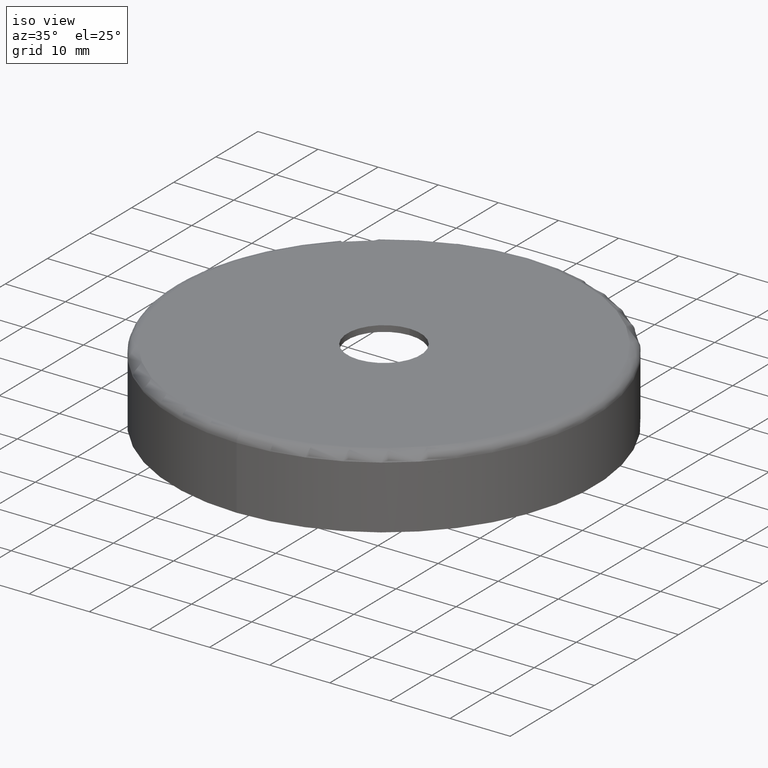
[diagram: clean part render]
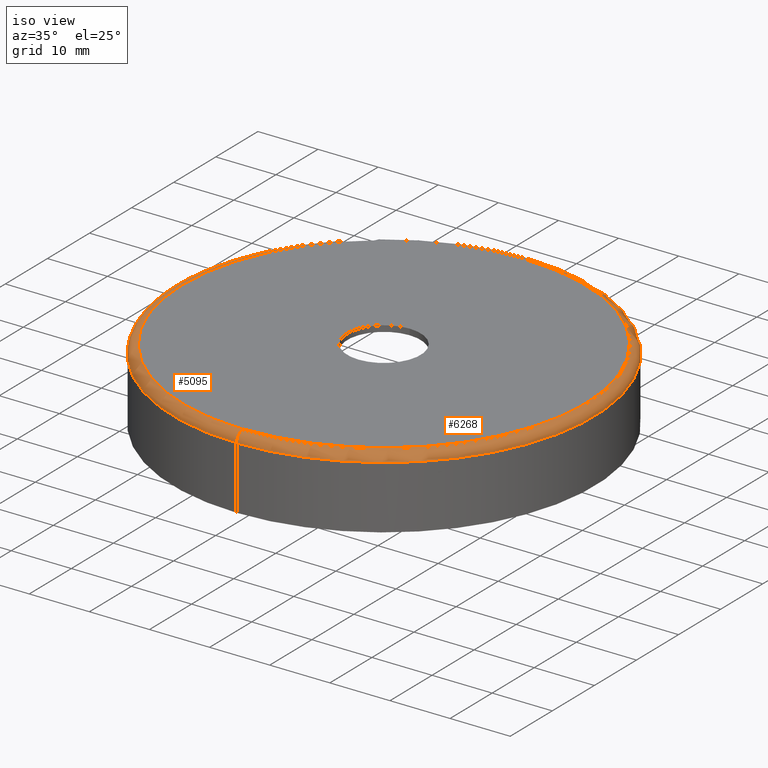
[diagram: same view with one multi-face feature highlighted, each face labeled with its STEP entity id]
A machine part, iso view. The highlighted faces form ONE feature: a constant-radius fillet chain: 2 tangent blend faces with common blend radius 1.5 mm. The faces share edges in the B-rep.
Their STEP definitions:
[1] entity #5095 (Torus):
#173 = AXIS2_PLACEMENT_3D ( 'NONE', #12098, #1568, #8496 ) ;
#221 = ORIENTED_EDGE ( 'NONE', *, *, #1708, .T. ) ;
#576 = CARTESIAN_POINT ( 'NONE',  ( 4.286263797015737285E-15, -35.00000000000000000, 10.50000000000000000 ) ) ;
#602 = AXIS2_PLACEMENT_3D ( 'NONE', #13229, #11862, #14198 ) ;
#965 = DIRECTION ( 'NONE',  ( 0.000000000000000000, 1.000000000000000000, 1.035655806553317700E-16 ) ) ;
#1568 = DIRECTION ( 'NONE',  ( -0.000000000000000000, 1.224646799147353454E-16, -1.000000000000000000 ) ) ;
#1613 = AXIS2_PLACEMENT_3D ( 'NONE', #12504, #3322, #965 ) ;
#1708 = EDGE_CURVE ( 'NONE', #6211, #11782, #13273, .T. ) ;
#2856 = CARTESIAN_POINT ( 'NONE',  ( 0.000000000000000000, 33.50000000000000000, 12.00000000000000888 ) ) ;
#3322 = DIRECTION ( 'NONE',  ( -0.000000000000000000, 1.224646799147353454E-16, -1.000000000000000000 ) ) ;
#3381 = CIRCLE ( 'NONE', #10506, 35.00000000000000000 ) ;
#4210 = VERTEX_POINT ( 'NONE', #576 ) ;
#4227 = CIRCLE ( 'NONE', #602, 1.500000000000001332 ) ;
#4285 = DIRECTION ( 'NONE',  ( 0.000000000000000000, 1.000000000000000000, 9.912705577010326782E-17 ) ) ;
#4468 = CARTESIAN_POINT ( 'NONE',  ( 0.000000000000000000, 33.50000000000000000, 10.50000000000000711 ) ) ;
#5043 = FACE_OUTER_BOUND ( 'NONE', #14782, .T. ) ;
#5095 = ADVANCED_FACE ( 'NONE', ( #5043 ), #11204, .T. ) ;
#5692 = ORIENTED_EDGE ( 'NONE', *, *, #8819, .F. ) ;
#5759 = CARTESIAN_POINT ( 'NONE',  ( 4.194415287079684346E-15, -33.50000000000000000, 12.00000000000000178 ) ) ;
#6209 = CARTESIAN_POINT ( 'NONE',  ( 0.000000000000000000, 35.00000000000000000, 10.50000000000000711 ) ) ;
#6211 = VERTEX_POINT ( 'NONE', #2856 ) ;
#6618 = DIRECTION ( 'NONE',  ( -0.000000000000000000, 1.224646799147353454E-16, -1.000000000000000000 ) ) ;
#6902 = DIRECTION ( 'NONE',  ( -1.000000000000000000, 0.000000000000000000, 0.000000000000000000 ) ) ;
#7136 = AXIS2_PLACEMENT_3D ( 'NONE', #4468, #6902, #9172 ) ;
#7705 = CARTESIAN_POINT ( 'NONE',  ( 0.000000000000000000, -1.285879139104721619E-15, 10.50000000000000355 ) ) ;
#7906 = CIRCLE ( 'NONE', #1613, 33.50000000000000000 ) ;
#8393 = EDGE_CURVE ( 'NONE', #12969, #6211, #7906, .T. ) ;
#8496 = DIRECTION ( 'NONE',  ( 0.000000000000000000, 1.000000000000000000, 1.224646799147353454E-16 ) ) ;
#8819 = EDGE_CURVE ( 'NONE', #4210, #11782, #3381, .T. ) ;
#8912 = ORIENTED_EDGE ( 'NONE', *, *, #12632, .F. ) ;
#9172 = DIRECTION ( 'NONE',  ( 0.000000000000000000, 0.000000000000000000, 1.000000000000000000 ) ) ;
#10506 = AXIS2_PLACEMENT_3D ( 'NONE', #7705, #6618, #4285 ) ;
#11107 = ORIENTED_EDGE ( 'NONE', *, *, #8393, .T. ) ;
#11204 = TOROIDAL_SURFACE ( 'NONE', #173, 33.50000000000000000, 1.500000000000001332 ) ;
#11782 = VERTEX_POINT ( 'NONE', #6209 ) ;
#11862 = DIRECTION ( 'NONE',  ( 1.000000000000000000, 1.224646799147353207E-16, 1.499759782661857882E-32 ) ) ;
#12098 = CARTESIAN_POINT ( 'NONE',  ( 0.000000000000000000, 0.000000000000000000, 10.50000000000000355 ) ) ;
#12504 = CARTESIAN_POINT ( 'NONE',  ( 0.000000000000000000, -1.469576158976824736E-15, 12.00000000000000533 ) ) ;
#12632 = EDGE_CURVE ( 'NONE', #12969, #4210, #4227, .T. ) ;
#12969 = VERTEX_POINT ( 'NONE', #5759 ) ;
#13229 = CARTESIAN_POINT ( 'NONE',  ( 4.102566777143633774E-15, -33.50000000000000000, 10.50000000000000000 ) ) ;
#13273 = CIRCLE ( 'NONE', #7136, 1.500000000000001332 ) ;
#14198 = DIRECTION ( 'NONE',  ( -1.224646799147354440E-16, 1.000000000000000000, 0.000000000000000000 ) ) ;
#14782 = EDGE_LOOP ( 'NONE', ( #8912, #11107, #221, #5692 ) ) ;
[2] entity #6268 (Torus):
#249 = EDGE_LOOP ( 'NONE', ( #11783, #7113, #5145, #12016 ) ) ;
#574 = AXIS2_PLACEMENT_3D ( 'NONE', #627, #8740, #6483 ) ;
#576 = CARTESIAN_POINT ( 'NONE',  ( 4.286263797015737285E-15, -35.00000000000000000, 10.50000000000000000 ) ) ;
#602 = AXIS2_PLACEMENT_3D ( 'NONE', #13229, #11862, #14198 ) ;
#627 = CARTESIAN_POINT ( 'NONE',  ( 0.000000000000000000, -1.469576158976824736E-15, 12.00000000000000533 ) ) ;
#814 = DIRECTION ( 'NONE',  ( -0.000000000000000000, 1.224646799147353454E-16, -1.000000000000000000 ) ) ;
#1551 = CARTESIAN_POINT ( 'NONE',  ( 0.000000000000000000, 0.000000000000000000, 10.50000000000000355 ) ) ;
#1708 = EDGE_CURVE ( 'NONE', #6211, #11782, #13273, .T. ) ;
#2856 = CARTESIAN_POINT ( 'NONE',  ( 0.000000000000000000, 33.50000000000000000, 12.00000000000000888 ) ) ;
#2860 = TOROIDAL_SURFACE ( 'NONE', #13891, 33.50000000000000000, 1.500000000000001332 ) ;
#2885 = DIRECTION ( 'NONE',  ( 0.000000000000000000, 1.000000000000000000, 9.912705577010326782E-17 ) ) ;
#4019 = CARTESIAN_POINT ( 'NONE',  ( 0.000000000000000000, -1.285879139104721619E-15, 10.50000000000000355 ) ) ;
#4210 = VERTEX_POINT ( 'NONE', #576 ) ;
#4227 = CIRCLE ( 'NONE', #602, 1.500000000000001332 ) ;
#4468 = CARTESIAN_POINT ( 'NONE',  ( 0.000000000000000000, 33.50000000000000000, 10.50000000000000711 ) ) ;
#5145 = ORIENTED_EDGE ( 'NONE', *, *, #10425, .F. ) ;
#5759 = CARTESIAN_POINT ( 'NONE',  ( 4.194415287079684346E-15, -33.50000000000000000, 12.00000000000000178 ) ) ;
#5847 = AXIS2_PLACEMENT_3D ( 'NONE', #4019, #13430, #2885 ) ;
#6209 = CARTESIAN_POINT ( 'NONE',  ( 0.000000000000000000, 35.00000000000000000, 10.50000000000000711 ) ) ;
#6211 = VERTEX_POINT ( 'NONE', #2856 ) ;
#6268 = ADVANCED_FACE ( 'NONE', ( #6286 ), #2860, .T. ) ;
#6286 = FACE_OUTER_BOUND ( 'NONE', #249, .T. ) ;
#6483 = DIRECTION ( 'NONE',  ( 0.000000000000000000, 1.000000000000000000, 1.035655806553317700E-16 ) ) ;
#6902 = DIRECTION ( 'NONE',  ( -1.000000000000000000, 0.000000000000000000, 0.000000000000000000 ) ) ;
#6992 = CIRCLE ( 'NONE', #574, 33.50000000000000000 ) ;
#7113 = ORIENTED_EDGE ( 'NONE', *, *, #12632, .T. ) ;
#7136 = AXIS2_PLACEMENT_3D ( 'NONE', #4468, #6902, #9172 ) ;
#7212 = EDGE_CURVE ( 'NONE', #6211, #12969, #6992, .T. ) ;
#8740 = DIRECTION ( 'NONE',  ( -0.000000000000000000, 1.224646799147353454E-16, -1.000000000000000000 ) ) ;
#9172 = DIRECTION ( 'NONE',  ( 0.000000000000000000, 0.000000000000000000, 1.000000000000000000 ) ) ;
#10425 = EDGE_CURVE ( 'NONE', #11782, #4210, #10777, .T. ) ;
#10777 = CIRCLE ( 'NONE', #5847, 35.00000000000000000 ) ;
#11782 = VERTEX_POINT ( 'NONE', #6209 ) ;
#11783 = ORIENTED_EDGE ( 'NONE', *, *, #7212, .T. ) ;
#11862 = DIRECTION ( 'NONE',  ( 1.000000000000000000, 1.224646799147353207E-16, 1.499759782661857882E-32 ) ) ;
#12016 = ORIENTED_EDGE ( 'NONE', *, *, #1708, .F. ) ;
#12632 = EDGE_CURVE ( 'NONE', #12969, #4210, #4227, .T. ) ;
#12969 = VERTEX_POINT ( 'NONE', #5759 ) ;
#13229 = CARTESIAN_POINT ( 'NONE',  ( 4.102566777143633774E-15, -33.50000000000000000, 10.50000000000000000 ) ) ;
#13273 = CIRCLE ( 'NONE', #7136, 1.500000000000001332 ) ;
#13430 = DIRECTION ( 'NONE',  ( -0.000000000000000000, 1.224646799147353454E-16, -1.000000000000000000 ) ) ;
#13510 = DIRECTION ( 'NONE',  ( 0.000000000000000000, 1.000000000000000000, 1.224646799147353454E-16 ) ) ;
#13891 = AXIS2_PLACEMENT_3D ( 'NONE', #1551, #814, #13510 ) ;
#14198 = DIRECTION ( 'NONE',  ( -1.224646799147354440E-16, 1.000000000000000000, 0.000000000000000000 ) ) ;